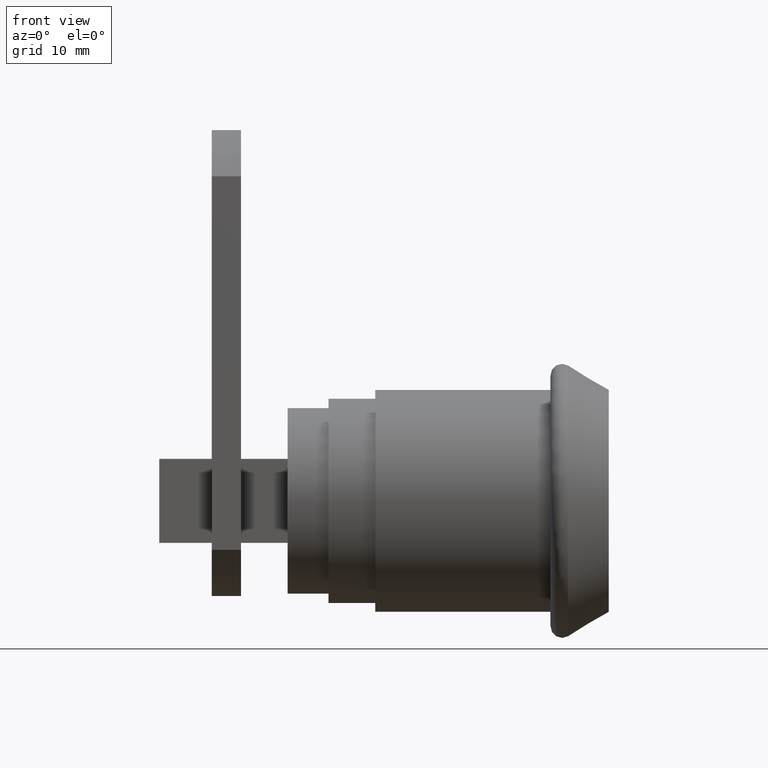
[diagram: clean part render]
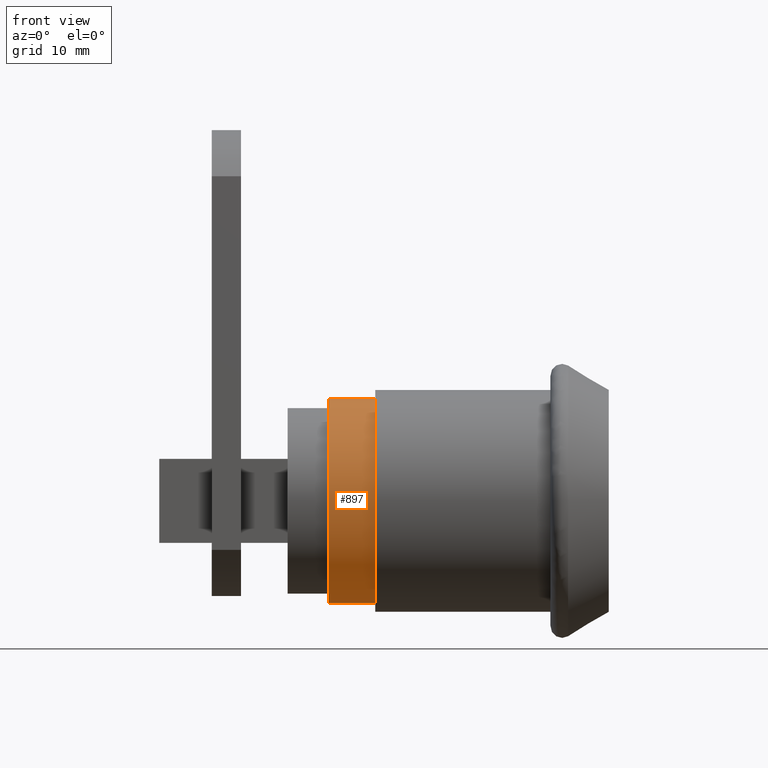
[diagram: same view with one face highlighted and labeled with its STEP entity id]
A machine part, front view. The second image highlights one B-rep face of the part: STEP entity #897.
In plain terms, the highlighted cylindrical surface (bore or boss wall) has radius 8.75 mm, axis along (1, 0, 0).
Its self-contained STEP definition (entity closure, byte-faithful):
#842=CARTESIAN_POINT('',(-19.999999999999986,8.750000000000000,0.0));
#843=VERTEX_POINT('',#842);
#844=CARTESIAN_POINT('',(-19.999999999999986,-8.750000000000000,0.0));
#845=VERTEX_POINT('',#844);
#846=CARTESIAN_POINT('',(-19.999999999999986,0.0,0.0));
#847=DIRECTION('',(1.0,0.0,0.0));
#848=DIRECTION('',(0.0,1.0,0.0));
#849=AXIS2_PLACEMENT_3D('',#846,#847,#848);
#850=CIRCLE('',#849,8.750000000000000);
#851=EDGE_CURVE('',#843,#845,#850,.T.);
#853=CARTESIAN_POINT('',(-19.999999999999986,0.0,0.0));
#854=DIRECTION('',(1.0,0.0,0.0));
#855=DIRECTION('',(0.0,1.0,0.0));
#856=AXIS2_PLACEMENT_3D('',#853,#854,#855);
#857=CIRCLE('',#856,8.750000000000000);
#858=EDGE_CURVE('',#845,#843,#857,.T.);
#863=CARTESIAN_POINT('',(-19.999999999999986,0.0,0.0));
#864=DIRECTION('',(1.0,0.0,0.0));
#865=DIRECTION('',(0.0,1.0,0.0));
#866=AXIS2_PLACEMENT_3D('',#863,#864,#865);
#867=CYLINDRICAL_SURFACE('',#866,8.750000000000000);
#868=CARTESIAN_POINT('',(-24.000000000000014,8.750000000000000,0.0));
#869=VERTEX_POINT('',#868);
#870=CARTESIAN_POINT('',(-19.999999999999986,8.750000000000000,0.0));
#871=DIRECTION('',(-1.0,0.0,0.0));
#872=VECTOR('',#871,4.000000000000028);
#873=LINE('',#870,#872);
#874=EDGE_CURVE('',#843,#869,#873,.T.);
#875=ORIENTED_EDGE('',*,*,#874,.T.);
#876=CARTESIAN_POINT('',(-24.000000000000014,-8.750000000000000,0.0));
#877=VERTEX_POINT('',#876);
#878=CARTESIAN_POINT('',(-24.000000000000014,0.0,0.0));
#879=DIRECTION('',(1.0,0.0,0.0));
#880=DIRECTION('',(0.0,1.0,0.0));
#881=AXIS2_PLACEMENT_3D('',#878,#879,#880);
#882=CIRCLE('',#881,8.750000000000000);
#883=EDGE_CURVE('',#869,#877,#882,.T.);
#884=ORIENTED_EDGE('',*,*,#883,.T.);
#885=CARTESIAN_POINT('',(-24.000000000000014,0.0,0.0));
#886=DIRECTION('',(1.0,0.0,0.0));
#887=DIRECTION('',(0.0,1.0,0.0));
#888=AXIS2_PLACEMENT_3D('',#885,#886,#887);
#889=CIRCLE('',#888,8.750000000000000);
#890=EDGE_CURVE('',#877,#869,#889,.T.);
#891=ORIENTED_EDGE('',*,*,#890,.T.);
#892=ORIENTED_EDGE('',*,*,#874,.F.);
#893=ORIENTED_EDGE('',*,*,#858,.F.);
#894=ORIENTED_EDGE('',*,*,#851,.F.);
#895=EDGE_LOOP('',(#875,#884,#891,#892,#893,#894));
#896=FACE_OUTER_BOUND('',#895,.T.);
#897=ADVANCED_FACE('',(#896),#867,.T.);